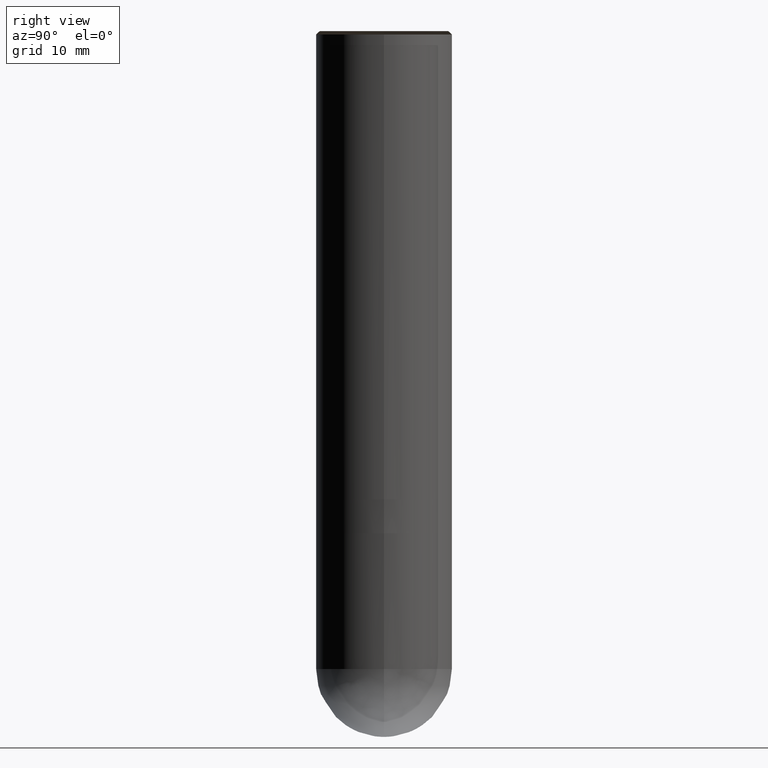
[diagram: clean part render]
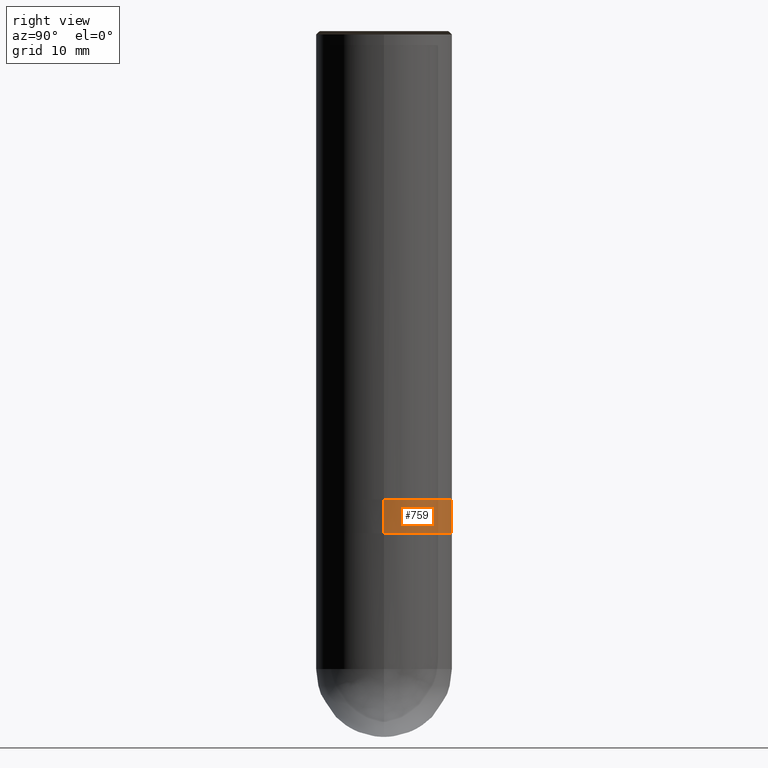
[diagram: same view with one face highlighted and labeled with its STEP entity id]
A machine part, right view. The second image highlights one B-rep face of the part: STEP entity #759.
In plain terms, the highlighted face is a freeform B-spline surface patch.
Its self-contained STEP definition (entity closure, byte-faithful):
#571=CARTESIAN_POINT('',(10.0,0.0,-5.0));
#572=CARTESIAN_POINT('',(10.0,10.0,-5.0));
#573=CARTESIAN_POINT('',(0.0,10.0,-5.0));
#574=CARTESIAN_POINT('',(-10.0,10.0,-5.0));
#575=CARTESIAN_POINT('',(-10.0,0.0,-5.0));
#586=CARTESIAN_POINT('',(10.0,0.0,0.0));
#587=CARTESIAN_POINT('',(10.0,10.0,0.0));
#588=CARTESIAN_POINT('',(0.0,10.0,0.0));
#589=CARTESIAN_POINT('',(-10.0,10.0,0.0));
#590=CARTESIAN_POINT('',(-10.0,0.0,0.0));
#740=(
BOUNDED_SURFACE()
B_SPLINE_SURFACE(1,2,(
(#571,#572,#573,#574,#575),
(#586,#587,#588,#589,#590)
), .UNSPECIFIED.,.F.,.F.,.F.)
B_SPLINE_SURFACE_WITH_KNOTS((2,2),(3,2,3),(
0.0,1.0),(
0.0,0.5,1.0), .UNSPECIFIED.)
GEOMETRIC_REPRESENTATION_ITEM()
RATIONAL_B_SPLINE_SURFACE(((1.0,0.707106781187,1.0,0.707106781187,1.0),
(1.0,0.707106781187,1.0,0.707106781187,1.0)
))
REPRESENTATION_ITEM('')
SURFACE()
);
#741=(
BOUNDED_CURVE()
B_SPLINE_CURVE(2,(#575,#574,#573,#572,#571),.UNSPECIFIED.,.F.,.F.)
B_SPLINE_CURVE_WITH_KNOTS((3,2,3),
(0.0,0.5,1.0),.UNSPECIFIED.)
CURVE()
GEOMETRIC_REPRESENTATION_ITEM()
RATIONAL_B_SPLINE_CURVE((1.0,0.707106781187,1.0,0.707106781187,1.0))
REPRESENTATION_ITEM('')
);
#742=(
BOUNDED_CURVE()
B_SPLINE_CURVE(1,(#571,#586),.UNSPECIFIED.,.F.,.F.)
B_SPLINE_CURVE_WITH_KNOTS((2,2),
(0.0,1.0),.UNSPECIFIED.)
CURVE()
GEOMETRIC_REPRESENTATION_ITEM()
RATIONAL_B_SPLINE_CURVE((1.0,1.0))
REPRESENTATION_ITEM('')
);
#743=(
BOUNDED_CURVE()
B_SPLINE_CURVE(2,(#586,#587,#588,#589,#590),.UNSPECIFIED.,.F.,.F.)
B_SPLINE_CURVE_WITH_KNOTS((3,2,3),
(0.0,0.5,1.0),.UNSPECIFIED.)
CURVE()
GEOMETRIC_REPRESENTATION_ITEM()
RATIONAL_B_SPLINE_CURVE((1.0,0.707106781187,1.0,0.707106781187,1.0))
REPRESENTATION_ITEM('')
);
#744=(
BOUNDED_CURVE()
B_SPLINE_CURVE(1,(#590,#575),.UNSPECIFIED.,.F.,.F.)
B_SPLINE_CURVE_WITH_KNOTS((2,2),
(0.0,1.0),.UNSPECIFIED.)
CURVE()
GEOMETRIC_REPRESENTATION_ITEM()
RATIONAL_B_SPLINE_CURVE((1.0,1.0))
REPRESENTATION_ITEM('')
);
#745=VERTEX_POINT('',#571);
#746=VERTEX_POINT('',#575);
#747=VERTEX_POINT('',#586);
#748=VERTEX_POINT('',#590);
#749=EDGE_CURVE('',#746,#745,#741,.T.);
#750=EDGE_CURVE('',#745,#747,#742,.T.);
#751=EDGE_CURVE('',#747,#748,#743,.T.);
#752=EDGE_CURVE('',#748,#746,#744,.T.);
#753=ORIENTED_EDGE('',*,*,#749,.T.);
#754=ORIENTED_EDGE('',*,*,#750,.T.);
#755=ORIENTED_EDGE('',*,*,#751,.T.);
#756=ORIENTED_EDGE('',*,*,#752,.T.);
#757=EDGE_LOOP('',(#753,#754,#755,#756));
#758=FACE_OUTER_BOUND('',#757,.T.);
#759=ADVANCED_FACE('',(#758),#740,.T.);